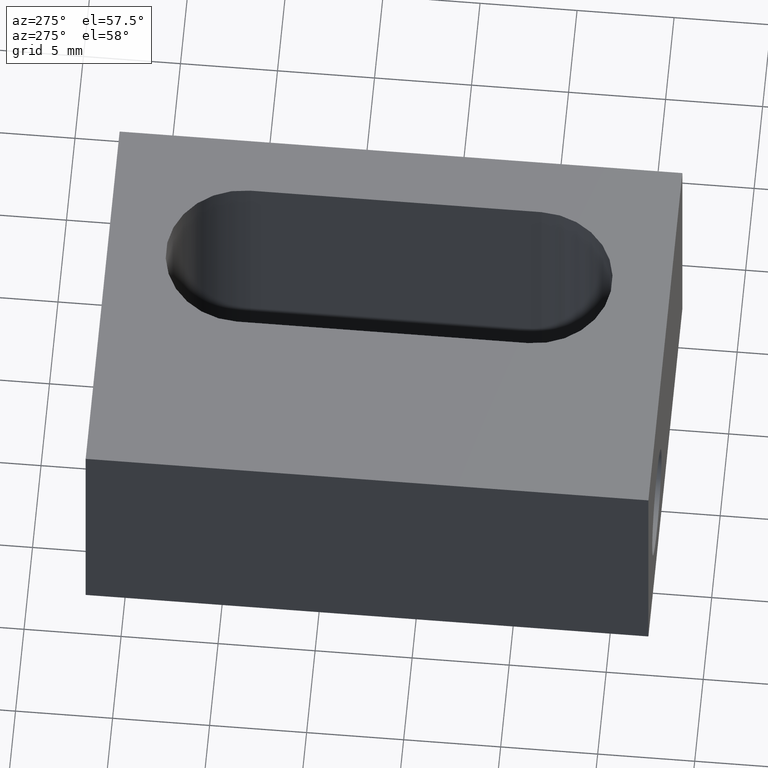
[diagram: clean part render]
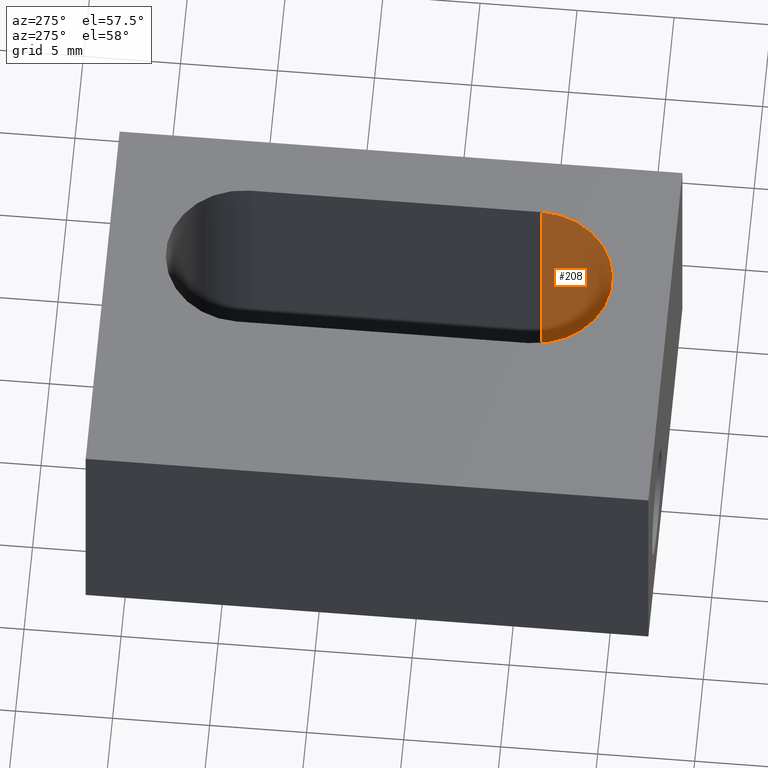
[diagram: same view with one face highlighted and labeled with its STEP entity id]
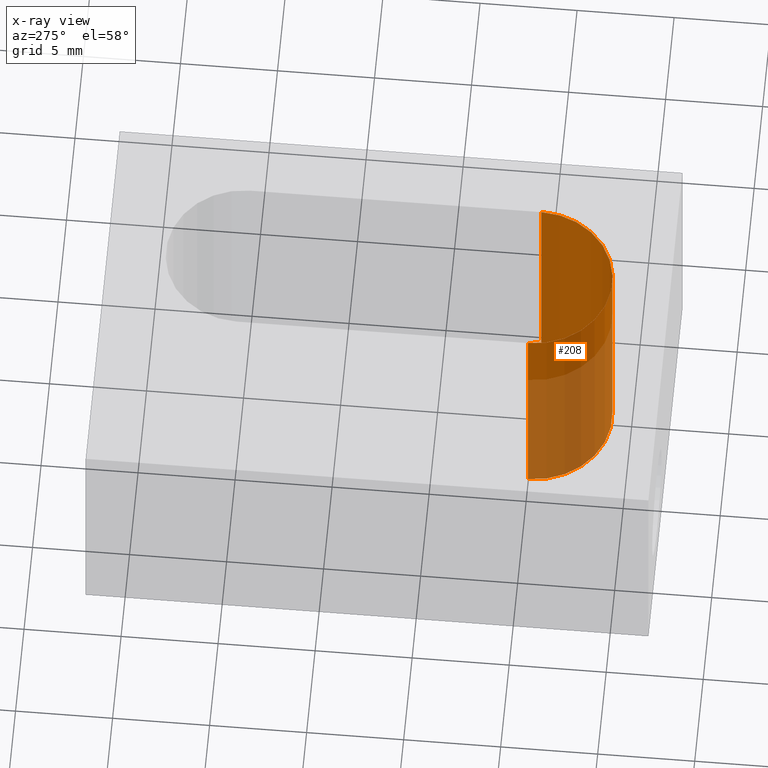
[diagram: x-ray of the same camera — body ghosted, the highlighted face saturated]
A machine part, auxiliary view. The second image highlights one B-rep face of the part: STEP entity #208.
The next image is the same camera in x-ray: the body ghosted, the highlighted face saturated — about 45% of this face is hidden behind the body in this view.
In plain terms, the highlighted cylindrical surface (partial cylindrical patch) has radius 4 mm, axis along (0, 0, 1).
Its self-contained STEP definition (entity closure, byte-faithful):
#16=CYLINDRICAL_SURFACE('',#227,3.999999999984);
#26=CIRCLE('',#221,3.999999999984);
#27=CIRCLE('',#223,3.999999999984);
#37=FACE_OUTER_BOUND('',#52,.T.);
#52=EDGE_LOOP('',(#182,#183,#184,#185));
#74=LINE('',#337,#94);
#75=LINE('',#339,#95);
#94=VECTOR('',#278,13.);
#95=VECTOR('',#281,13.);
#108=VERTEX_POINT('',#319);
#109=VERTEX_POINT('',#321);
#111=VERTEX_POINT('',#326);
#112=VERTEX_POINT('',#328);
#130=EDGE_CURVE('',#109,#108,#26,.T.);
#133=EDGE_CURVE('',#111,#112,#27,.T.);
#138=EDGE_CURVE('',#109,#111,#74,.T.);
#139=EDGE_CURVE('',#108,#112,#75,.T.);
#182=ORIENTED_EDGE('',*,*,#138,.F.);
#183=ORIENTED_EDGE('',*,*,#130,.T.);
#184=ORIENTED_EDGE('',*,*,#139,.T.);
#185=ORIENTED_EDGE('',*,*,#133,.F.);
#208=ADVANCED_FACE('',(#37),#16,.F.);
#221=AXIS2_PLACEMENT_3D('',#322,#261,#262);
#223=AXIS2_PLACEMENT_3D('',#329,#267,#268);
#227=AXIS2_PLACEMENT_3D('',#338,#279,#280);
#261=DIRECTION('center_axis',(0.,0.,1.));
#262=DIRECTION('ref_axis',(1.,0.,0.));
#267=DIRECTION('center_axis',(0.,0.,1.));
#268=DIRECTION('ref_axis',(1.,0.,0.));
#278=DIRECTION('',(0.,0.,-1.));
#279=DIRECTION('center_axis',(0.,0.,1.));
#280=DIRECTION('ref_axis',(-1.,0.,0.));
#281=DIRECTION('',(0.,0.,-1.));
#319=CARTESIAN_POINT('',(3.99999999998386,0.,13.));
#321=CARTESIAN_POINT('',(-3.99999999998409,0.,13.));
#322=CARTESIAN_POINT('Origin',(0.,0.,13.));
#326=CARTESIAN_POINT('',(-3.99999999998409,0.,0.));
#328=CARTESIAN_POINT('',(3.99999999998386,0.,0.));
#329=CARTESIAN_POINT('Origin',(0.,0.,0.));
#337=CARTESIAN_POINT('',(-3.99999999998409,0.,13.));
#338=CARTESIAN_POINT('Origin',(0.,0.,13.));
#339=CARTESIAN_POINT('',(3.99999999998386,0.,13.));